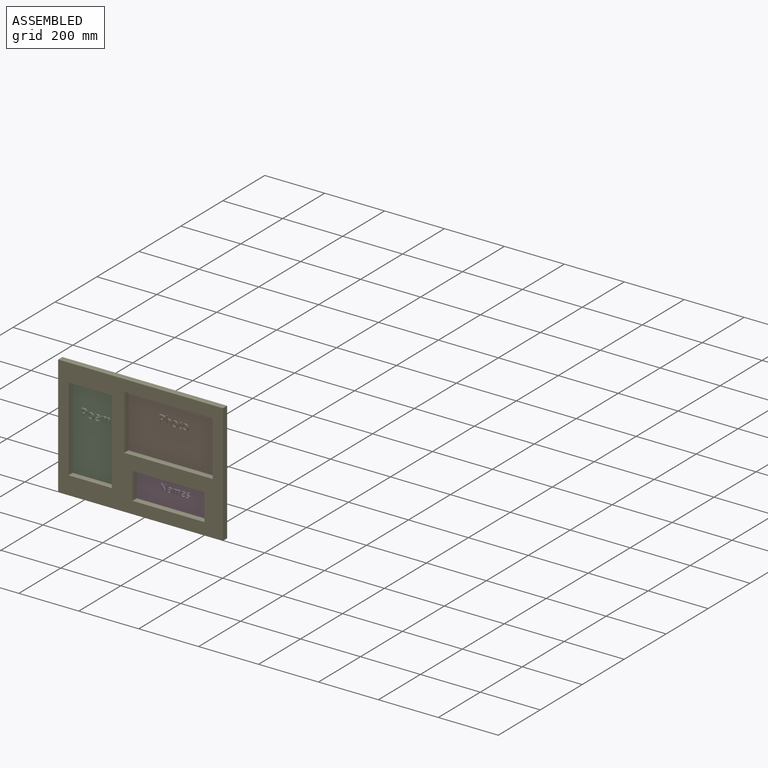
[diagram: assembled view]
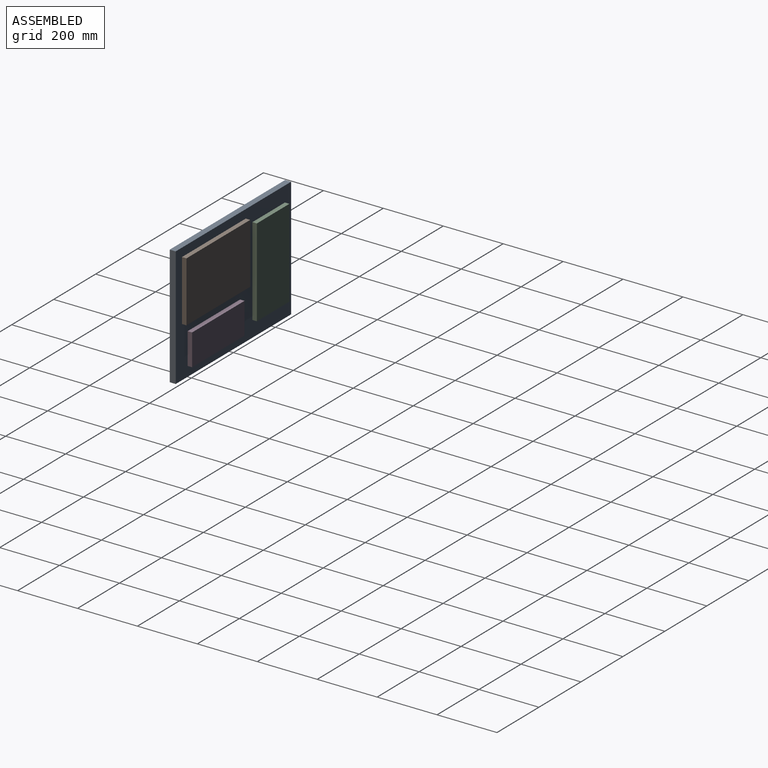
[diagram: assembled view, second angle]
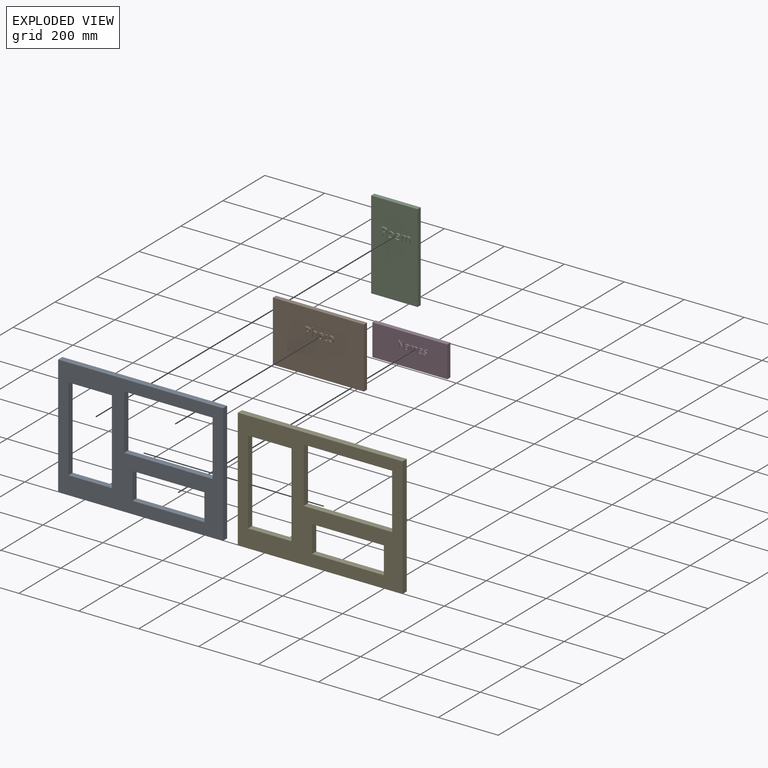
[diagram: exploded view]
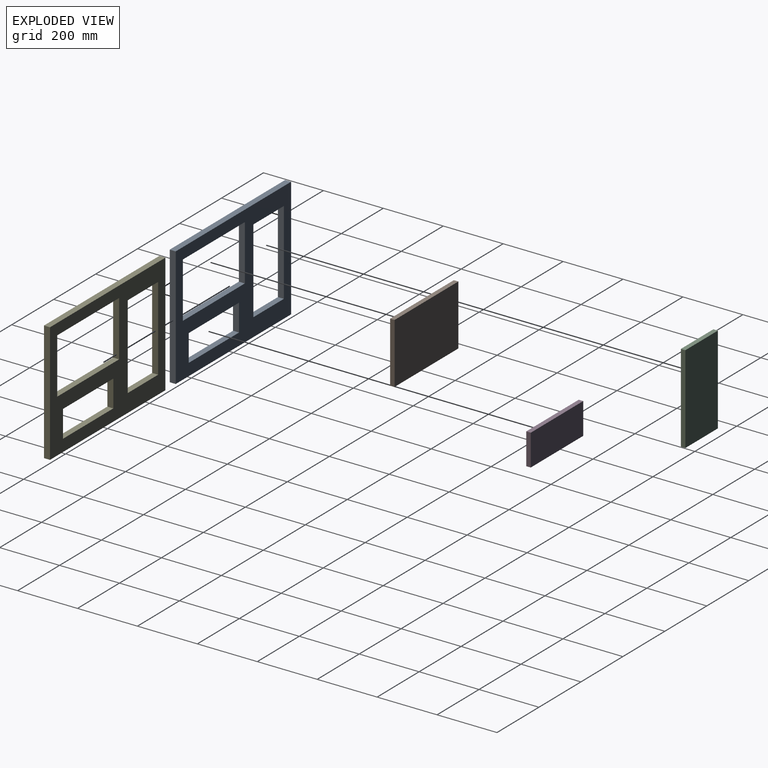
[diagram: exploded view, second angle]
ASSEMBLY  parts=5 mates=3
PART A: 18 faces, bbox 550x20x400 mm
  f0: plane 550x400mm, normal (0,-1,0), area 103225mm2, adj f2,f3,f4,f5,f6,f7,f8,f9
  f1: plane 550x400mm, normal (0,1,0), area 103225mm2, adj f2,f3,f4,f5,f6,f7,f8,f9
  f2: plane 550x20mm, normal (0,0,1), area 11000mm2, adj f0,f1,f3,f5
  f3: plane 400x20mm, normal (-1,0,0), area 8000mm2, adj f0,f1,f2,f4
  f4: plane 550x20mm, normal (0,0,-1), area 11000mm2, adj f0,f1,f3,f5
  f5: plane 400x20mm, normal (1,0,0), area 8000mm2, adj f0,f1,f2,f4
  f6: plane 240x20mm, normal (0,0,-1), area 4800mm2, adj f0,f1,f7,f9
  f7: plane 90x20mm, normal (1,0,0), area 1800mm2, adj f0,f1,f6,f8
  f8: plane 240x20mm, normal (0,0,1), area 4800mm2, adj f0,f1,f7,f9
  f9: plane 90x20mm, normal (-1,0,0), area 1800mm2, adj f0,f1,f6,f8
  f10: plane 295x20mm, normal (0,0,-1), area 5900mm2, adj f0,f1,f11,f13
  f11: plane 185x20mm, normal (1,0,0), area 3700mm2, adj f0,f1,f10,f12
  f12: plane 295x20mm, normal (0,0,1), area 5900mm2, adj f0,f1,f11,f13
  f13: plane 185x20mm, normal (-1,0,0), area 3700mm2, adj f0,f1,f10,f12
  f14: plane 145x20mm, normal (0,0,-1), area 2900mm2, adj f0,f1,f15,f17
  f15: plane 280x20mm, normal (1,0,0), area 5600mm2, adj f0,f1,f14,f16
  f16: plane 145x20mm, normal (0,0,1), area 2900mm2, adj f0,f1,f15,f17
  f17: plane 280x20mm, normal (-1,0,0), area 5600mm2, adj f0,f1,f14,f16
PART B: 100 faces, bbox 304x20x202 mm
  f0: plane 304x202mm, normal (0,-1,0), area 60325.7mm2, adj f1,f2,f3,f4,f12,f13,f14,f15
  f1: plane 304x15mm, normal (0,0,1), area 4560mm2, adj f0,f2,f4,f5
  f2: plane 202x15mm, normal (-1,0,0), area 3030mm2, adj f0,f1,f3,f5
  f3: plane 304x15mm, normal (0,0,-1), area 4560mm2, adj f0,f2,f4,f5
  f4: plane 202x15mm, normal (1,0,0), area 3030mm2, adj f0,f1,f3,f5
  f5: plane 304x202mm, normal (0,1,0), area 61408mm2, adj f1,f2,f3,f4
  f6: plane 5x2.69mm, normal (0,0,1), area 13.4mm2, adj f7,f20,f21,f22
  f7: plane 10.41x5mm, normal (1,0,0), area 52.1mm2, adj f6,f8,f21,f22
  f8: plane 5x3.33mm, normal (0,0,-1), area 16.7mm2, adj f7,f9,f21,f22
  f9: extruded ~5.19x5mm, area 27.1mm2, adj f8,f10,f21,f22
  f10: extruded ~5x3.78mm, area 21.5mm2, adj f9,f11,f21,f22
  f11: extruded ~5x4.11mm, area 23.3mm2, adj f10,f20,f21,f22
  f12: extruded ~5.99x5mm, area 34mm2, adj f0,f13,f19,f21
  f13: extruded ~9.6x7.47mm, area 69.5mm2, adj f0,f12,f14,f21
  f14: plane 6.65x5mm, normal (0,0,1), area 33.2mm2, adj f0,f13,f15,f21
  f15: plane 25.63x5mm, normal (-1,0,0), area 128.1mm2, adj f0,f14,f16,f21
  f16: plane 5x2.98mm, normal (0,0,-1), area 14.9mm2, adj f0,f15,f17,f21
  f17: plane 10.08x5mm, normal (1,0,0), area 50.4mm2, adj f0,f16,f18,f21
  f18: plane 5x3.02mm, normal (0,0,-1), area 15.1mm2, adj f0,f17,f19,f21
  f19: extruded ~7.6x5mm, area 40.1mm2, adj f0,f12,f18,f21
  f20: extruded ~5.73x5mm, area 29.8mm2, adj f6,f11,f21,f22
  f21: plane 25.63x16.25mm, normal (0,-1,0), area 161.9mm2, adj f6,f7,f8,f9,f10,f11,f12,f13
  f22: plane 10.41x10.19mm, normal (0,-1,0), area 94.3mm2, adj f6,f7,f8,f9,f10,f11,f20
  f23: plane 12.43x5mm, normal (-1,0,0), area 62.2mm2, adj f0,f24,f40,f41
  f24: plane 5x2.91mm, normal (0,0,-1), area 14.6mm2, adj f0,f23,f25,f41
  f25: plane 12.53x5mm, normal (1,0,0), area 62.7mm2, adj f0,f24,f26,f41
  f26: extruded ~5.32x5mm, area 28.8mm2, adj f0,f25,f27,f41
  f27: extruded ~5.29x5mm, area 28.4mm2, adj f0,f26,f28,f41
  f28: extruded ~5x3.62mm, area 18.7mm2, adj f0,f27,f29,f41
  f29: extruded ~5x2.45mm, area 16.6mm2, adj f0,f28,f30,f41
  f30: plane 5x0.17mm, normal (0,0,1), area 0.9mm2, adj f0,f29,f31,f41
  f31: extruded ~5x2.47mm, area 12.4mm2, adj f0,f30,f32,f41
  f32: plane 8.26x5mm, normal (1,0,0), area 41.3mm2, adj f0,f31,f33,f41
  f33: plane 5x2.91mm, normal (0,0,1), area 14.6mm2, adj f0,f32,f34,f41
  f34: plane 27.28x5mm, normal (-1,0,0), area 136.4mm2, adj f0,f33,f35,f41
  f35: plane 5x2.91mm, normal (0,0,-1), area 14.6mm2, adj f0,f34,f36,f41
  f36: plane 10.05x5mm, normal (1,0,0), area 50.2mm2, adj f0,f35,f37,f41
  f37: extruded ~5.4x5mm, area 28.4mm2, adj f0,f36,f38,f41
  f38: extruded ~5x4.42mm, area 24.4mm2, adj f0,f37,f39,f41
  f39: extruded ~5x3.35mm, area 18.3mm2, adj f0,f38,f40,f41
  f40: extruded ~5x3.5mm, area 18.7mm2, adj f0,f23,f39,f41
  f41: plane 27.28x16.06mm, normal (0,-1,0), area 157.6mm2, adj f23,f24,f25,f26,f27,f28,f29,f30
  f42: extruded ~5.61x5mm, area 29.5mm2, adj f43,f58,f59,f60
  f43: extruded ~5.59x5mm, area 29.4mm2, adj f42,f44,f59,f60
  f44: extruded ~5x4.31mm, area 24.4mm2, adj f43,f45,f59,f60
  f45: extruded ~5x4.38mm, area 24.8mm2, adj f44,f46,f59,f60
  f46: extruded ~5.56x5mm, area 29.3mm2, adj f45,f47,f59,f60
  f47: extruded ~5.62x5mm, area 29.6mm2, adj f46,f48,f59,f60
  f48: extruded ~5x4.34mm, area 24.6mm2, adj f47,f58,f59,f60
  f49: extruded ~7.34x5mm, area 39.4mm2, adj f0,f50,f57,f59
  f50: extruded ~7.26x5mm, area 39mm2, adj f0,f49,f51,f59
  f51: extruded ~6.4x5mm, area 35.8mm2, adj f0,f50,f52,f59
  f52: extruded ~6.52x5mm, area 36.3mm2, adj f0,f51,f53,f59
  f53: extruded ~7.32x5mm, area 39.3mm2, adj f0,f52,f54,f59
  f54: extruded ~5.3x5mm, area 27.3mm2, adj f0,f53,f55,f59
  f55: extruded ~5x3.47mm, area 23.6mm2, adj f0,f54,f56,f59
  f56: extruded ~5x4.58mm, area 24mm2, adj f0,f55,f57,f59
  f57: extruded ~6.54x5mm, area 36.4mm2, adj f0,f49,f56,f59
  f58: extruded ~5x4.33mm, area 24.6mm2, adj f42,f48,f59,f60
  f59: plane 19.92x17.65mm, normal (0,-1,0), area 141.8mm2, adj f42,f43,f44,f45,f46,f47,f48,f49
  f60: plane 15.01x11.62mm, normal (0,-1,0), area 144.7mm2, adj f42,f43,f44,f45,f46,f47,f48,f58
  f61: extruded ~5x1.49mm, area 7.5mm2, adj f0,f62,f79,f80
  f62: extruded ~5x2.26mm, area 12.6mm2, adj f0,f61,f63,f80
  f63: extruded ~5x2.66mm, area 14.2mm2, adj f0,f62,f64,f80
  f64: plane 11.31x5mm, normal (1,0,0), area 56.5mm2, adj f0,f63,f65,f80
  f65: plane 5.58x5mm, normal (0,0,-1), area 27.9mm2, adj f0,f64,f66,f80
  f66: plane 5x2.26mm, normal (1,0,0), area 11.3mm2, adj f0,f65,f67,f80
  f67: plane 5.58x5mm, normal (0,0,1), area 27.9mm2, adj f0,f66,f68,f80
  f68: plane 5x4.45mm, normal (1,0,0), area 22.3mm2, adj f0,f67,f69,f80
  f69: plane 5x1.68mm, normal (0,0,1), area 8.4mm2, adj f0,f68,f70,f80
  f70: plane 5x4.1mm, normal (-0.96,0,0.29), area 21.4mm2, adj f0,f69,f71,f80
  f71: plane 5x2.75mm, normal (-0.4,0,0.92), area 15mm2, adj f0,f70,f72,f80
  f72: plane 5x1.4mm, normal (-1,0,0), area 7mm2, adj f0,f71,f73,f80
  f73: plane 5x2.75mm, normal (0,0,-1), area 13.8mm2, adj f0,f72,f74,f80
  f74: plane 11.43x5mm, normal (-1,0,0), area 57.2mm2, adj f0,f73,f75,f80
  f75: extruded ~5.87x5.57mm, area 46.4mm2, adj f0,f74,f76,f80
  f76: extruded ~5x1.66mm, area 8.3mm2, adj f0,f75,f77,f80
  f77: extruded ~5x1.39mm, area 7.2mm2, adj f0,f76,f78,f80
  f78: plane 5x2.23mm, normal (1,0,0), area 11.1mm2, adj f0,f77,f79,f80
  f79: extruded ~5x1.14mm, area 5.8mm2, adj f0,f61,f78,f80
  f80: plane 24.02x11.38mm, normal (0,-1,0), area 95.5mm2, adj f61,f62,f63,f64,f65,f66,f67,f68
  f81: extruded ~5.61x5mm, area 29.5mm2, adj f82,f97,f98,f99
  f82: extruded ~5.59x5mm, area 29.4mm2, adj f81,f83,f98,f99
  f83: extruded ~5x4.31mm, area 24.4mm2, adj f82,f84,f98,f99
  f84: extruded ~5x4.38mm, area 24.8mm2, adj f83,f85,f98,f99
  f85: extruded ~5.56x5mm, area 29.3mm2, adj f84,f86,f98,f99
  f86: extruded ~5.62x5mm, area 29.6mm2, adj f85,f87,f98,f99
  f87: extruded ~5x4.34mm, area 24.6mm2, adj f86,f97,f98,f99
  f88: extruded ~7.34x5mm, area 39.4mm2, adj f0,f89,f96,f98
  f89: extruded ~7.26x5mm, area 39mm2, adj f0,f88,f90,f98
  f90: extruded ~6.4x5mm, area 35.8mm2, adj f0,f89,f91,f98
  f91: extruded ~6.52x5mm, area 36.3mm2, adj f0,f90,f92,f98
  f92: extruded ~7.32x5mm, area 39.3mm2, adj f0,f91,f93,f98
  f93: extruded ~5.3x5mm, area 27.3mm2, adj f0,f92,f94,f98
  f94: extruded ~5x3.47mm, area 23.6mm2, adj f0,f93,f95,f98
  f95: extruded ~5x4.58mm, area 24mm2, adj f0,f94,f96,f98
  f96: extruded ~6.54x5mm, area 36.4mm2, adj f0,f88,f95,f98
  f97: extruded ~5x4.33mm, area 24.6mm2, adj f81,f87,f98,f99
  f98: plane 19.92x17.65mm, normal (0,-1,0), area 141.8mm2, adj f81,f82,f83,f84,f85,f86,f87,f88
  f99: plane 15.01x11.62mm, normal (0,-1,0), area 144.7mm2, adj f81,f82,f83,f84,f85,f86,f87,f97
PART C: 92 faces, bbox 155x20x295 mm
  f0: plane 295x155mm, normal (0,-1,0), area 44704.8mm2, adj f1,f2,f3,f4,f12,f13,f14,f15
  f1: plane 155x15mm, normal (0,0,1), area 2325mm2, adj f0,f2,f4,f5
  f2: plane 295x15mm, normal (-1,0,0), area 4425mm2, adj f0,f1,f3,f5
  f3: plane 155x15mm, normal (0,0,-1), area 2325mm2, adj f0,f2,f4,f5
  f4: plane 295x15mm, normal (1,0,0), area 4425mm2, adj f0,f1,f3,f5
  f5: plane 295x155mm, normal (0,1,0), area 45725mm2, adj f1,f2,f3,f4
  f6: plane 5x2.79mm, normal (0,0,1), area 14mm2, adj f7,f20,f21,f22
  f7: plane 10.82x5mm, normal (1,0,0), area 54.1mm2, adj f6,f8,f21,f22
  f8: plane 5x3.46mm, normal (0,0,-1), area 17.3mm2, adj f7,f9,f21,f22
  f9: extruded ~5.39x5mm, area 28.2mm2, adj f8,f10,f21,f22
  f10: extruded ~5x3.93mm, area 22.3mm2, adj f9,f11,f21,f22
  f11: extruded ~5x4.27mm, area 24.2mm2, adj f10,f20,f21,f22
  f12: extruded ~6.22x5mm, area 35.3mm2, adj f0,f13,f19,f21
  f13: extruded ~9.98x7.76mm, area 72.2mm2, adj f0,f12,f14,f21
  f14: plane 6.91x5mm, normal (0,0,1), area 34.5mm2, adj f0,f13,f15,f21
  f15: plane 26.63x5mm, normal (-1,0,0), area 133.1mm2, adj f0,f14,f16,f21
  f16: plane 5x3.09mm, normal (0,0,-1), area 15.5mm2, adj f0,f15,f17,f21
  f17: plane 10.47x5mm, normal (1,0,0), area 52.4mm2, adj f0,f16,f18,f21
  f18: plane 5x3.14mm, normal (0,0,-1), area 15.7mm2, adj f0,f17,f19,f21
  f19: extruded ~7.89x5mm, area 41.7mm2, adj f0,f12,f18,f21
  f20: extruded ~5.95x5mm, area 31mm2, adj f6,f11,f21,f22
  f21: plane 26.63x16.88mm, normal (0,-1,0), area 174.8mm2, adj f6,f7,f8,f9,f10,f11,f12,f13
  f22: plane 10.82x10.58mm, normal (0,-1,0), area 101.8mm2, adj f6,f7,f8,f9,f10,f11,f20
  f23: extruded ~5.83x5mm, area 30.7mm2, adj f24,f39,f40,f41
  f24: extruded ~5.81x5mm, area 30.5mm2, adj f23,f25,f40,f41
  f25: extruded ~5x4.48mm, area 25.4mm2, adj f24,f26,f40,f41
  f26: extruded ~5x4.55mm, area 25.7mm2, adj f25,f27,f40,f41
  f27: extruded ~5.78x5mm, area 30.5mm2, adj f26,f28,f40,f41
  f28: extruded ~5.84x5mm, area 30.7mm2, adj f27,f29,f40,f41
  f29: extruded ~5x4.51mm, area 25.6mm2, adj f28,f39,f40,f41
  f30: extruded ~7.63x5mm, area 41mm2, adj f0,f31,f38,f40
  f31: extruded ~7.54x5mm, area 40.6mm2, adj f0,f30,f32,f40
  f32: extruded ~6.65x5mm, area 37.2mm2, adj f0,f31,f33,f40
  f33: extruded ~6.78x5mm, area 37.7mm2, adj f0,f32,f34,f40
  f34: extruded ~7.6x5mm, area 40.8mm2, adj f0,f33,f35,f40
  f35: extruded ~5.5x5mm, area 28.3mm2, adj f0,f34,f36,f40
  f36: extruded ~5x3.61mm, area 24.5mm2, adj f0,f35,f37,f40
  f37: extruded ~5x4.76mm, area 24.9mm2, adj f0,f36,f38,f40
  f38: extruded ~6.79x5mm, area 37.8mm2, adj f0,f30,f37,f40
  f39: extruded ~5x4.5mm, area 25.6mm2, adj f23,f29,f40,f41
  f40: plane 20.69x18.34mm, normal (0,-1,0), area 153mm2, adj f23,f24,f25,f26,f27,f28,f29,f30
  f41: plane 15.59x12.08mm, normal (0,-1,0), area 156.2mm2, adj f23,f24,f25,f26,f27,f28,f29,f39
  f42: extruded ~5x3.83mm, area 21.3mm2, adj f43,f60,f61,f62
  f43: extruded ~5x3.65mm, area 20.4mm2, adj f42,f44,f61,f62
  f44: extruded ~5x4.38mm, area 23.3mm2, adj f43,f45,f61,f62
  f45: plane 10.44x5mm, normal (0,0,1), area 52.2mm2, adj f44,f60,f61,f62
  f46: extruded ~6.98x5mm, area 38.5mm2, adj f0,f47,f59,f61
  f47: extruded ~5x3.45mm, area 17.3mm2, adj f0,f46,f48,f61
  f48: extruded ~5x3.03mm, area 16mm2, adj f0,f47,f49,f61
  f49: plane 5x2.7mm, normal (1,0,0), area 13.5mm2, adj f0,f48,f50,f61
  f50: extruded ~6.37x5mm, area 32.8mm2, adj f0,f49,f51,f61
  f51: extruded ~5x4.74mm, area 26.2mm2, adj f0,f50,f52,f61
  f52: extruded ~5.34x5mm, area 28.7mm2, adj f0,f51,f53,f61
  f53: plane 13.75x5mm, normal (0,0,-1), area 68.7mm2, adj f0,f52,f54,f61
  f54: plane 5x1.91mm, normal (1,0,0), area 9.6mm2, adj f0,f53,f55,f61
  f55: extruded ~6.51x5mm, area 35.1mm2, adj f0,f54,f56,f61
  f56: extruded ~5.93x5mm, area 33.2mm2, adj f0,f55,f57,f61
  f57: extruded ~6.39x5mm, area 36.2mm2, adj f0,f56,f58,f61
  f58: extruded ~7.67x5mm, area 41mm2, adj f0,f57,f59,f61
  f59: extruded ~7.48x5mm, area 40.5mm2, adj f0,f46,f58,f61
  f60: extruded ~5x4.33mm, area 23.7mm2, adj f42,f45,f61,f62
  f61: plane 20.69x16.88mm, normal (0,-1,0), area 158.9mm2, adj f42,f43,f44,f45,f46,f47,f48,f49
  f62: plane 10.44x5.9mm, normal (0,-1,0), area 49.6mm2, adj f42,f43,f44,f45,f60
  f63: plane 12.98x5mm, normal (-1,0,0), area 64.9mm2, adj f0,f64,f90,f91
  f64: plane 5x3.02mm, normal (0,0,-1), area 15.1mm2, adj f0,f63,f65,f91
  f65: plane 13.02x5mm, normal (1,0,0), area 65.1mm2, adj f0,f64,f66,f91
  f66: extruded ~5.57x5mm, area 29.8mm2, adj f0,f65,f67,f91
  f67: extruded ~5.07x5mm, area 27.5mm2, adj f0,f66,f68,f91
  f68: extruded ~5x3.86mm, area 20mm2, adj f0,f67,f69,f91
  f69: extruded ~5x2.58mm, area 18.2mm2, adj f0,f68,f70,f91
  f70: plane 5x0.15mm, normal (0,0,1), area 0.7mm2, adj f0,f69,f71,f91
  f71: extruded ~6.12x5mm, area 37.3mm2, adj f0,f70,f72,f91
  f72: extruded ~5x3.49mm, area 18.1mm2, adj f0,f71,f73,f91
  f73: extruded ~5x2.42mm, area 16.8mm2, adj f0,f72,f74,f91
  f74: plane 5x0.15mm, normal (0,0,1), area 0.7mm2, adj f0,f73,f75,f91
  f75: plane 5x2.73mm, normal (0.98,0,0.18), area 13.9mm2, adj f0,f74,f76,f91
  f76: plane 5x2.46mm, normal (0,0,1), area 12.3mm2, adj f0,f75,f77,f91
  f77: plane 19.96x5mm, normal (-1,0,0), area 99.8mm2, adj f0,f76,f78,f91
  f78: plane 5x3.02mm, normal (0,0,-1), area 15.1mm2, adj f0,f77,f79,f91
  f79: plane 10.47x5mm, normal (1,0,0), area 52.4mm2, adj f0,f78,f80,f91
  f80: extruded ~5.58x5mm, area 29.2mm2, adj f0,f79,f81,f91
  f81: extruded ~5x4.16mm, area 23.3mm2, adj f0,f80,f82,f91
  f82: extruded ~5x3.19mm, area 17.6mm2, adj f0,f81,f83,f91
  f83: extruded ~5x3.58mm, area 19mm2, adj f0,f82,f84,f91
  f84: plane 12.98x5mm, normal (-1,0,0), area 64.9mm2, adj f0,f83,f85,f91
  f85: plane 5x3.02mm, normal (0,0,-1), area 15.1mm2, adj f0,f84,f86,f91
  f86: plane 11.15x5mm, normal (1,0,0), area 55.7mm2, adj f0,f85,f87,f91
  f87: extruded ~5x4.99mm, area 26.3mm2, adj f0,f86,f88,f91
  f88: extruded ~5x4.17mm, area 23.1mm2, adj f0,f87,f89,f91
  f89: extruded ~5x3.17mm, area 17.5mm2, adj f0,f88,f90,f91
  f90: extruded ~5x3.58mm, area 19mm2, adj f0,f63,f89,f91
  f91: plane 28.46x20.33mm, normal (0,-1,0), area 225.9mm2, adj f63,f64,f65,f66,f67,f68,f69,f70
PART D: 127 faces, bbox 250x20x105 mm
  f0: plane 250x105mm, normal (0,-1,0), area 25583.7mm2, adj f1,f2,f3,f4,f6,f7,f8,f9
  f1: plane 250x15mm, normal (0,0,1), area 3750mm2, adj f0,f2,f4,f5
  f2: plane 105x15mm, normal (-1,0,0), area 1575mm2, adj f0,f1,f3,f5
  f3: plane 250x15mm, normal (0,0,-1), area 3750mm2, adj f0,f2,f4,f5
  f4: plane 105x15mm, normal (1,0,0), area 1575mm2, adj f0,f1,f3,f5
  f5: plane 250x105mm, normal (0,1,0), area 26250mm2, adj f1,f2,f3,f4
  f6: plane 5x2.87mm, normal (0,0,-1), area 14.4mm2, adj f0,f7,f20,f21
  f7: plane 21.65x5mm, normal (1,0,0), area 108.3mm2, adj f0,f6,f8,f21
  f8: plane 5x2.36mm, normal (0,0,1), area 11.8mm2, adj f0,f7,f9,f21
  f9: plane 12.43x5mm, normal (-1,0,0), area 62.1mm2, adj f0,f8,f10,f21
  f10: extruded ~5x3.1mm, area 15.5mm2, adj f0,f9,f11,f21
  f11: extruded ~5x2.57mm, area 12.9mm2, adj f0,f10,f12,f21
  f12: plane 5x0.12mm, normal (0,0,1), area 0.6mm2, adj f0,f11,f13,f21
  f13: plane 18.1x11.8mm, normal (0.84,0,0.55), area 108mm2, adj f0,f12,f14,f21
  f14: plane 5x2.84mm, normal (0,0,1), area 14.2mm2, adj f0,f13,f15,f21
  f15: plane 21.65x5mm, normal (-1,0,0), area 108.3mm2, adj f0,f14,f16,f21
  f16: plane 5x2.33mm, normal (0,0,-1), area 11.6mm2, adj f0,f15,f17,f21
  f17: plane 12.31x5mm, normal (1,0,0), area 61.5mm2, adj f0,f16,f18,f21
  f18: extruded ~5.86x5mm, area 29.3mm2, adj f0,f17,f19,f21
  f19: plane 5x0.12mm, normal (0,0,-1), area 0.6mm2, adj f0,f18,f20,f21
  f20: plane 18.17x11.83mm, normal (-0.84,0,-0.55), area 108.4mm2, adj f0,f6,f19,f21
  f21: plane 21.65x16.91mm, normal (0,-1,0), area 154.8mm2, adj f6,f7,f8,f9,f10,f11,f12,f13
  f22: extruded ~5x3.61mm, area 19.6mm2, adj f23,f48,f49,f50
  f23: extruded ~5x2.26mm, area 12.1mm2, adj f22,f24,f49,f50
  f24: extruded ~5x2.03mm, area 11.3mm2, adj f23,f25,f49,f50
  f25: extruded ~5x2.51mm, area 14.8mm2, adj f24,f26,f49,f50
  f26: extruded ~5x4.23mm, area 21.8mm2, adj f25,f27,f49,f50
  f27: plane 5x2.46mm, normal (0.04,0,-1), area 12.3mm2, adj f26,f28,f49,f50
  f28: plane 5x1.46mm, normal (-1,0,0), area 7.3mm2, adj f27,f48,f49,f50
  f29: plane 5x2.31mm, normal (-0.98,0,-0.21), area 11.8mm2, adj f0,f30,f47,f49
  f30: plane 5x1.82mm, normal (0,0,-1), area 9.1mm2, adj f0,f29,f31,f49
  f31: plane 11.08x5mm, normal (1,0,0), area 55.4mm2, adj f0,f30,f32,f49
  f32: extruded ~5x4.13mm, area 22.4mm2, adj f0,f31,f33,f49
  f33: extruded ~5x4.3mm, area 23mm2, adj f0,f32,f34,f49
  f34: extruded ~5x2.87mm, area 14.5mm2, adj f0,f33,f35,f49
  f35: extruded ~5x2.63mm, area 14.1mm2, adj f0,f34,f36,f49
  f36: plane 5x1.88mm, normal (-0.93,0,-0.37), area 10.1mm2, adj f0,f35,f37,f49
  f37: extruded ~5x4.59mm, area 24mm2, adj f0,f36,f38,f49
  f38: extruded ~5x2.63mm, area 14.3mm2, adj f0,f37,f39,f49
  f39: extruded ~5x2.82mm, area 15mm2, adj f0,f38,f40,f49
  f40: plane 5x1.01mm, normal (-1,0,0), area 5mm2, adj f0,f39,f41,f49
  f41: plane 5x2.75mm, normal (-0.03,0,1), area 13.8mm2, adj f0,f40,f42,f49
  f42: extruded ~7.86x5.15mm, area 52.8mm2, adj f0,f41,f43,f49
  f43: extruded ~5x3.54mm, area 19.6mm2, adj f0,f42,f44,f49
  f44: extruded ~5x3.78mm, area 20.4mm2, adj f0,f43,f45,f49
  f45: extruded ~5x3.02mm, area 15.4mm2, adj f0,f44,f46,f49
  f46: extruded ~5x2.42mm, area 16.1mm2, adj f0,f45,f47,f49
  f47: plane 5x0.12mm, normal (0,0,-1), area 0.6mm2, adj f0,f29,f46,f49
  f48: extruded ~5x3.52mm, area 19.3mm2, adj f22,f28,f49,f50
  f49: plane 16.79x13.02mm, normal (0,-1,0), area 103.2mm2, adj f22,f23,f24,f25,f26,f27,f28,f29
  f50: plane 7.98x6.25mm, normal (0,-1,0), area 40.2mm2, adj f22,f23,f24,f25,f26,f27,f28,f48
  f51: plane 10.56x5mm, normal (-1,0,0), area 52.8mm2, adj f0,f52,f78,f79
  f52: plane 5x2.45mm, normal (0,0,-1), area 12.3mm2, adj f0,f51,f53,f79
  f53: plane 10.59x5mm, normal (1,0,0), area 52.9mm2, adj f0,f52,f54,f79
  f54: extruded ~5x4.53mm, area 24.2mm2, adj f0,f53,f55,f79
  f55: extruded ~5x4.12mm, area 22.4mm2, adj f0,f54,f56,f79
  f56: extruded ~5x3.14mm, area 16.3mm2, adj f0,f55,f57,f79
  f57: extruded ~5x2.1mm, area 14.8mm2, adj f0,f56,f58,f79
  f58: plane 5x0.12mm, normal (0,0,1), area 0.6mm2, adj f0,f57,f59,f79
  f59: extruded ~5x4.98mm, area 30.4mm2, adj f0,f58,f60,f79
  f60: extruded ~5x2.84mm, area 14.7mm2, adj f0,f59,f61,f79
  f61: extruded ~5x1.96mm, area 13.7mm2, adj f0,f60,f62,f79
  f62: plane 5x0.12mm, normal (0,0,1), area 0.6mm2, adj f0,f61,f63,f79
  f63: plane 5x2.22mm, normal (0.98,0,0.18), area 11.3mm2, adj f0,f62,f64,f79
  f64: plane 5x2mm, normal (0,0,1), area 10mm2, adj f0,f63,f65,f79
  f65: plane 16.23x5mm, normal (-1,0,0), area 81.2mm2, adj f0,f64,f66,f79
  f66: plane 5x2.46mm, normal (0,0,-1), area 12.3mm2, adj f0,f65,f67,f79
  f67: plane 8.52x5mm, normal (1,0,0), area 42.6mm2, adj f0,f66,f68,f79
  f68: extruded ~5x4.54mm, area 23.7mm2, adj f0,f67,f69,f79
  f69: extruded ~5x3.38mm, area 19mm2, adj f0,f68,f70,f79
  f70: extruded ~5x2.59mm, area 14.3mm2, adj f0,f69,f71,f79
  f71: extruded ~5x2.91mm, area 15.5mm2, adj f0,f70,f72,f79
  f72: plane 10.56x5mm, normal (-1,0,0), area 52.8mm2, adj f0,f71,f73,f79
  f73: plane 5x2.46mm, normal (0,0,-1), area 12.3mm2, adj f0,f72,f74,f79
  f74: plane 9.07x5mm, normal (1,0,0), area 45.3mm2, adj f0,f73,f75,f79
  f75: extruded ~5x4.06mm, area 21.4mm2, adj f0,f74,f76,f79
  f76: extruded ~5x3.39mm, area 18.8mm2, adj f0,f75,f77,f79
  f77: extruded ~5x2.58mm, area 14.2mm2, adj f0,f76,f78,f79
  f78: extruded ~5x2.91mm, area 15.5mm2, adj f0,f51,f77,f79
  f79: plane 23.14x16.53mm, normal (0,-1,0), area 149.4mm2, adj f51,f52,f53,f54,f55,f56,f57,f58
  f80: extruded ~5x3.12mm, area 17.4mm2, adj f81,f98,f99,f100
  f81: extruded ~5x2.96mm, area 16.6mm2, adj f80,f82,f99,f100
  f82: extruded ~5x3.56mm, area 18.9mm2, adj f81,f83,f99,f100
  f83: plane 8.49x5mm, normal (0,0,1), area 42.4mm2, adj f82,f98,f99,f100
  f84: extruded ~5.68x5mm, area 31.3mm2, adj f0,f85,f97,f99
  f85: extruded ~5x2.81mm, area 14.1mm2, adj f0,f84,f86,f99
  f86: extruded ~5x2.46mm, area 13mm2, adj f0,f85,f87,f99
  f87: plane 5x2.19mm, normal (1,0,0), area 11mm2, adj f0,f86,f88,f99
  f88: extruded ~5.18x5mm, area 26.7mm2, adj f0,f87,f89,f99
  f89: extruded ~5x3.86mm, area 21.3mm2, adj f0,f88,f90,f99
  f90: extruded ~5x4.34mm, area 23.4mm2, adj f0,f89,f91,f99
  f91: plane 11.18x5mm, normal (0,0,-1), area 55.9mm2, adj f0,f90,f92,f99
  f92: plane 5x1.55mm, normal (1,0,0), area 7.8mm2, adj f0,f91,f93,f99
  f93: extruded ~5.3x5mm, area 28.6mm2, adj f0,f92,f94,f99
  f94: extruded ~5x4.82mm, area 27mm2, adj f0,f93,f95,f99
  f95: extruded ~5.19x5mm, area 29.4mm2, adj f0,f94,f96,f99
  f96: extruded ~6.24x5mm, area 33.3mm2, adj f0,f95,f97,f99
  f97: extruded ~6.08x5mm, area 33mm2, adj f0,f84,f96,f99
  f98: extruded ~5x3.52mm, area 19.2mm2, adj f80,f83,f99,f100
  f99: plane 16.83x13.73mm, normal (0,-1,0), area 105.1mm2, adj f80,f81,f82,f83,f84,f85,f86,f87
  f100: plane 8.49x4.8mm, normal (0,-1,0), area 32.8mm2, adj f80,f81,f82,f83,f98
  f101: extruded ~5x3.5mm, area 20.2mm2, adj f0,f102,f125,f126
  f102: extruded ~5x2.68mm, area 14.7mm2, adj f0,f101,f103,f126
  f103: extruded ~5x3.9mm, area 22.4mm2, adj f0,f102,f104,f126
  f104: extruded ~5x2.84mm, area 15.4mm2, adj f0,f103,f105,f126
  f105: extruded ~5x1.07mm, area 7mm2, adj f0,f104,f106,f126
  f106: extruded ~5x1.11mm, area 5.9mm2, adj f0,f105,f107,f126
  f107: extruded ~5x1.51mm, area 9.2mm2, adj f0,f106,f108,f126
  f108: extruded ~5x2.64mm, area 13.6mm2, adj f0,f107,f109,f126
  f109: extruded ~5x4.43mm, area 22.8mm2, adj f0,f108,f110,f126
  f110: plane 5x2mm, normal (0.92,0,-0.4), area 10.9mm2, adj f0,f109,f111,f126
  f111: extruded ~5.13x5mm, area 26.4mm2, adj f0,f110,f112,f126
  f112: extruded ~5x4.43mm, area 23.2mm2, adj f0,f111,f113,f126
  f113: extruded ~5x3.13mm, area 18.4mm2, adj f0,f112,f114,f126
  f114: extruded ~5x1.91mm, area 9.9mm2, adj f0,f113,f115,f126
  f115: extruded ~5x1.43mm, area 10.2mm2, adj f0,f114,f116,f126
  f116: extruded ~5x3.22mm, area 17.7mm2, adj f0,f115,f117,f126
  f117: extruded ~5x3.21mm, area 18mm2, adj f0,f116,f118,f126
  f118: extruded ~5x1.62mm, area 9.4mm2, adj f0,f117,f119,f126
  f119: extruded ~5x1.87mm, area 11.3mm2, adj f0,f118,f120,f126
  f120: extruded ~5x2.96mm, area 15.3mm2, adj f0,f119,f121,f126
  f121: extruded ~5x2.59mm, area 13.1mm2, adj f0,f120,f122,f126
  f122: extruded ~5x2.51mm, area 13.4mm2, adj f0,f121,f123,f126
  f123: plane 5x2.28mm, normal (-1,0,0), area 11.4mm2, adj f0,f122,f124,f126
  f124: extruded ~5.03x5mm, area 26mm2, adj f0,f123,f125,f126
  f125: extruded ~5x4.74mm, area 24.9mm2, adj f0,f101,f124,f126
  f126: plane 16.83x11.51mm, normal (0,-1,0), area 80.9mm2, adj f101,f102,f103,f104,f105,f106,f107,f108
PART E: same geometry as A
PLACE A at identity
PLACE B t=(93.11,15,70.56)mm
PLACE C t=(-168.02,15,1.22)mm
PLACE D t=(93.25,15,-114.72)mm
PLACE E at identity
MATE planar B.f0 <-> A.f1  axis (0,-1,0) through (93,0,70)mm
MATE planar D.f0 <-> A.f1  axis (0,-1,0) through (93.01,0,-114.99)mm
MATE planar C.f0 <-> A.f1  axis (0,-1,0) through (-168,0,0.08)mm
